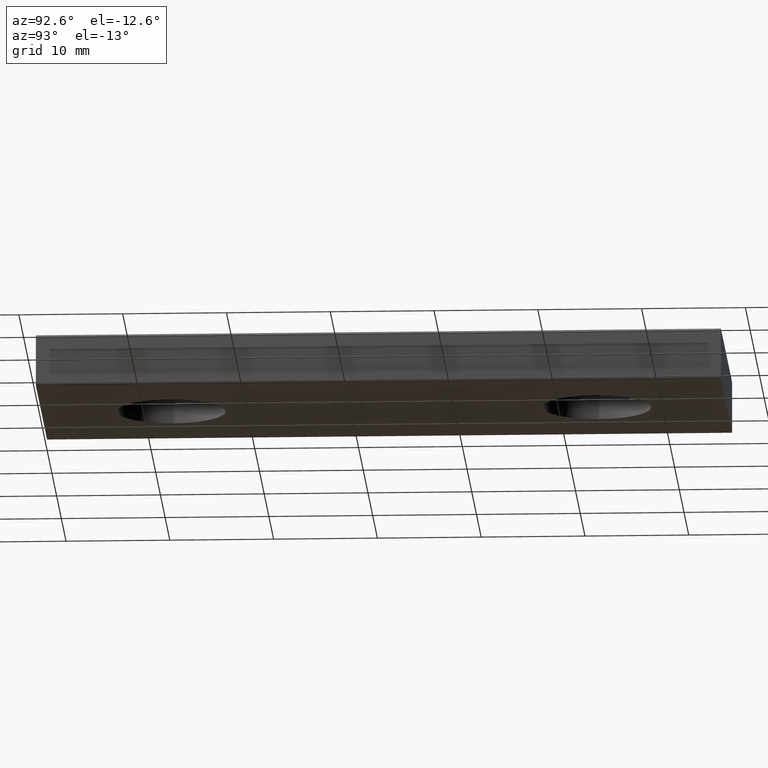
[diagram: clean part render]
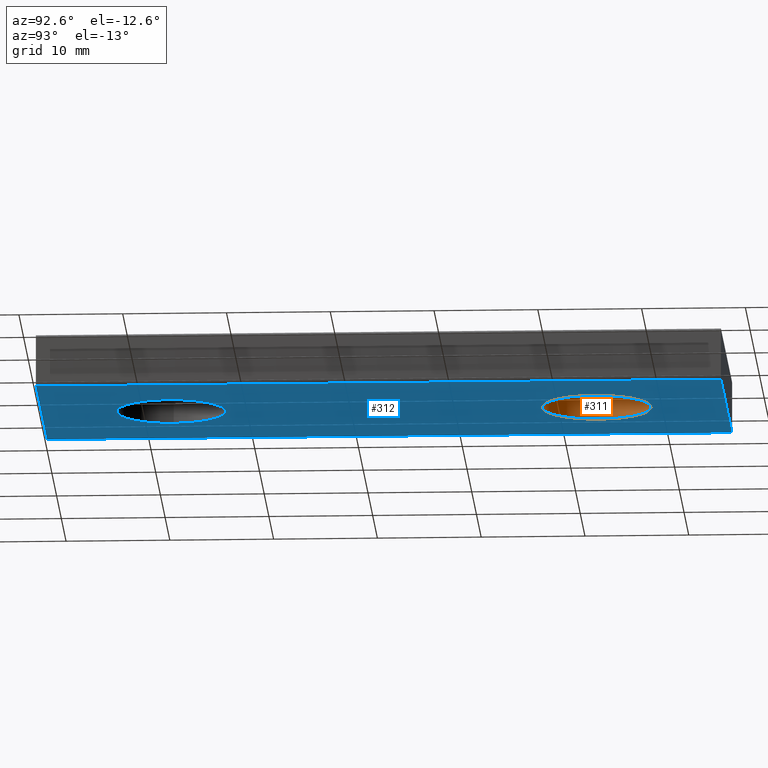
[diagram: same view with the hole feature highlighted: cylindrical wall and planar end face, labeled with their STEP entity ids]
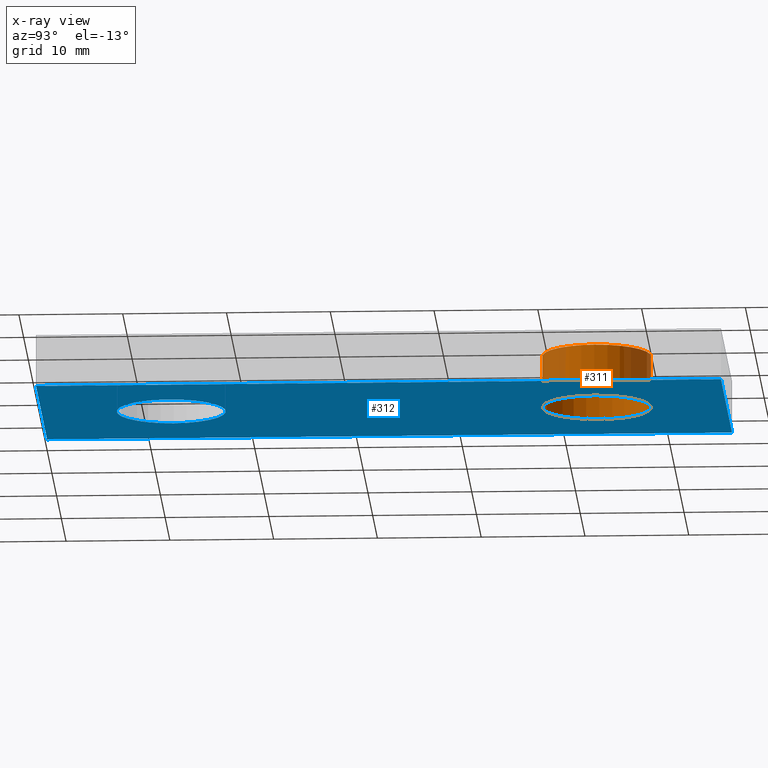
[diagram: x-ray of the same camera — body ghosted, the hole faces saturated]
A machine part, auxiliary view. The highlighted faces form one hole feature of diameter 10.5 mm: the cylindrical wall (entity #311, orange) and its adjacent planar end face (entity #312, blue) — they share a circular edge in the B-rep.
The next image is the same camera in x-ray (body ghosted, the hole faces saturated) — the bore reads through the body.
Wall:
#100=ORIENTED_EDGE('',*,*,#140,.F.);
#101=ORIENTED_EDGE('',*,*,#141,.T.);
#140=EDGE_CURVE('',#160,#160,#172,.T.);
#141=EDGE_CURVE('',#161,#161,#173,.T.);
#160=VERTEX_POINT('',#465);
#161=VERTEX_POINT('',#467);
#172=CIRCLE('',#339,5.25);
#173=CIRCLE('',#340,5.25);
#184=EDGE_LOOP('',(#100));
#185=EDGE_LOOP('',(#101));
#202=FACE_BOUND('',#184,.T.);
#203=FACE_BOUND('',#185,.T.);
#215=CYLINDRICAL_SURFACE('',#338,5.25);
#311=ADVANCED_FACE('',(#202,#203),#215,.F.);
#338=AXIS2_PLACEMENT_3D('',#463,#399,#400);
#339=AXIS2_PLACEMENT_3D('',#464,#401,#402);
#340=AXIS2_PLACEMENT_3D('',#466,#403,#404);
#399=DIRECTION('',(1.49186218934005E-16,1.49186218934005E-16,-1.));
#400=DIRECTION('',(-1.,2.2256527919825E-32,-1.49186218934005E-16));
#401=DIRECTION('',(1.49186218934005E-16,1.49186218934005E-16,-1.));
#402=DIRECTION('',(-1.,2.2256527919825E-32,-1.49186218934005E-16));
#403=DIRECTION('',(1.49186218934005E-16,1.49186218934005E-16,-1.));
#404=DIRECTION('',(-1.,2.2256527919825E-32,-1.49186218934005E-16));
#463=CARTESIAN_POINT('',(12.,53.5,4.99999999999974));
#464=CARTESIAN_POINT('',(12.,53.5,4.99999999999974));
#465=CARTESIAN_POINT('',(6.75,53.5,4.99999999999974));
#466=CARTESIAN_POINT('',(12.,53.5,-2.60208521396521E-13));
#467=CARTESIAN_POINT('',(6.75,53.5,-2.60991749045925E-13));
End face:
#24=PLANE('',#341);
#27=LINE('',#418,#43);
#31=LINE('',#436,#47);
#35=LINE('',#453,#51);
#39=LINE('',#459,#55);
#43=VECTOR('',#352,1000.);
#47=VECTOR('',#368,1000.);
#51=VECTOR('',#386,1000.);
#55=VECTOR('',#394,1000.);
#102=ORIENTED_EDGE('',*,*,#141,.F.);
#103=ORIENTED_EDGE('',*,*,#131,.F.);
#104=ORIENTED_EDGE('',*,*,#133,.F.);
#105=ORIENTED_EDGE('',*,*,#117,.T.);
#106=ORIENTED_EDGE('',*,*,#137,.F.);
#107=ORIENTED_EDGE('',*,*,#125,.T.);
#117=EDGE_CURVE('',#143,#145,#27,.T.);
#125=EDGE_CURVE('',#151,#153,#31,.T.);
#131=EDGE_CURVE('',#159,#159,#171,.T.);
#133=EDGE_CURVE('',#143,#153,#35,.T.);
#137=EDGE_CURVE('',#151,#145,#39,.T.);
#141=EDGE_CURVE('',#161,#161,#173,.T.);
#143=VERTEX_POINT('',#413);
#145=VERTEX_POINT('',#417);
#151=VERTEX_POINT('',#431);
#153=VERTEX_POINT('',#435);
#159=VERTEX_POINT('',#450);
#161=VERTEX_POINT('',#467);
#171=CIRCLE('',#333,5.25);
#173=CIRCLE('',#340,5.25);
#186=EDGE_LOOP('',(#102));
#187=EDGE_LOOP('',(#103));
#188=EDGE_LOOP('',(#104,#105,#106,#107));
#204=FACE_BOUND('',#186,.T.);
#205=FACE_BOUND('',#187,.T.);
#206=FACE_BOUND('',#188,.T.);
#312=ADVANCED_FACE('',(#204,#205,#206),#24,.T.);
#333=AXIS2_PLACEMENT_3D('',#449,#381,#382);
#340=AXIS2_PLACEMENT_3D('',#466,#403,#404);
#341=AXIS2_PLACEMENT_3D('',#468,#405,#406);
#352=DIRECTION('',(-1.31371731030452E-46,-1.,-1.49186218934005E-16));
#368=DIRECTION('',(1.31371731030452E-46,1.,1.49186218934005E-16));
#381=DIRECTION('',(1.49186218934005E-16,1.49186218934005E-16,-1.));
#382=DIRECTION('',(-1.,2.2256527919825E-32,-1.49186218934005E-16));
#386=DIRECTION('',(-1.,2.2256527919825E-32,-1.49186218934005E-16));
#394=DIRECTION('',(1.,-2.2256527919825E-32,1.49186218934005E-16));
#403=DIRECTION('',(1.49186218934005E-16,1.49186218934005E-16,-1.));
#404=DIRECTION('',(-1.,2.2256527919825E-32,-1.49186218934005E-16));
#405=DIRECTION('',(1.49186218934005E-16,1.49186218934005E-16,-1.));
#406=DIRECTION('',(-1.,2.2256527919825E-32,-1.49186218934005E-16));
#413=CARTESIAN_POINT('',(23.8,66.,-2.53387484605572E-13));
#417=CARTESIAN_POINT('',(23.8,-5.42836715964532E-31,-2.63508763420628E-13));
#418=CARTESIAN_POINT('',(23.8,53.600000003813,-2.56489187527853E-13));
#431=CARTESIAN_POINT('',(0.199999999999999,-1.75826570566617E-32,-2.6702955818747E-13));
#435=CARTESIAN_POINT('',(0.199999999999999,66.,-2.56908279372414E-13));
#436=CARTESIAN_POINT('',(0.199999999999999,53.600000003813,-2.60009982294695E-13));
#449=CARTESIAN_POINT('',(12.,12.5,-2.67147415300428E-13));
#450=CARTESIAN_POINT('',(6.75,12.5,-2.67930642949832E-13));
#453=CARTESIAN_POINT('',(24.59,66.,-2.53269627492614E-13));
#459=CARTESIAN_POINT('',(-0.589999999999997,0.,-2.67147415300428E-13));
#466=CARTESIAN_POINT('',(12.,53.5,-2.60208521396521E-13));
#467=CARTESIAN_POINT('',(6.75,53.5,-2.60991749045925E-13));
#468=CARTESIAN_POINT('',(22.125,53.600000003813,-2.56739074444567E-13));